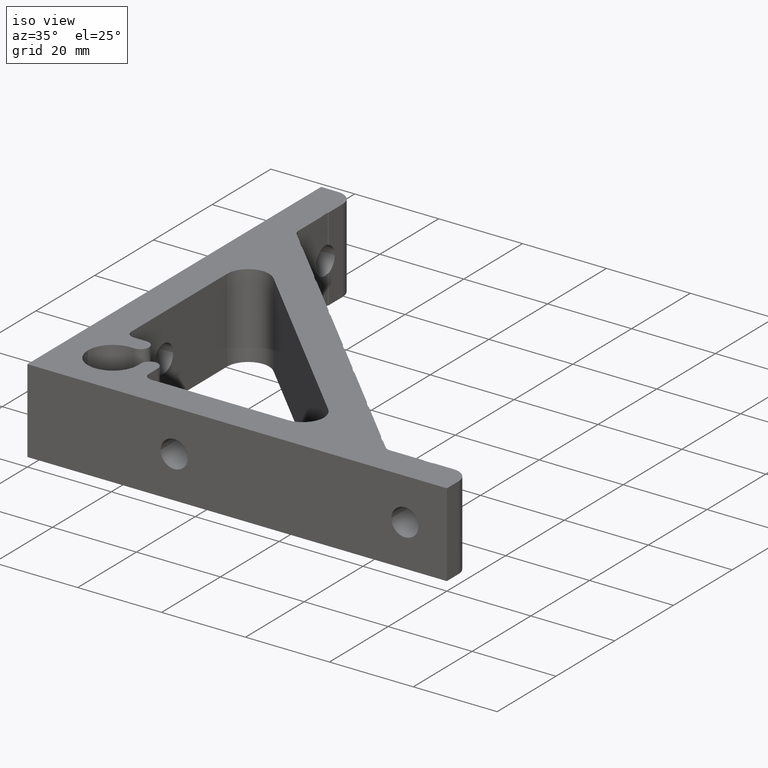
[diagram: clean part render]
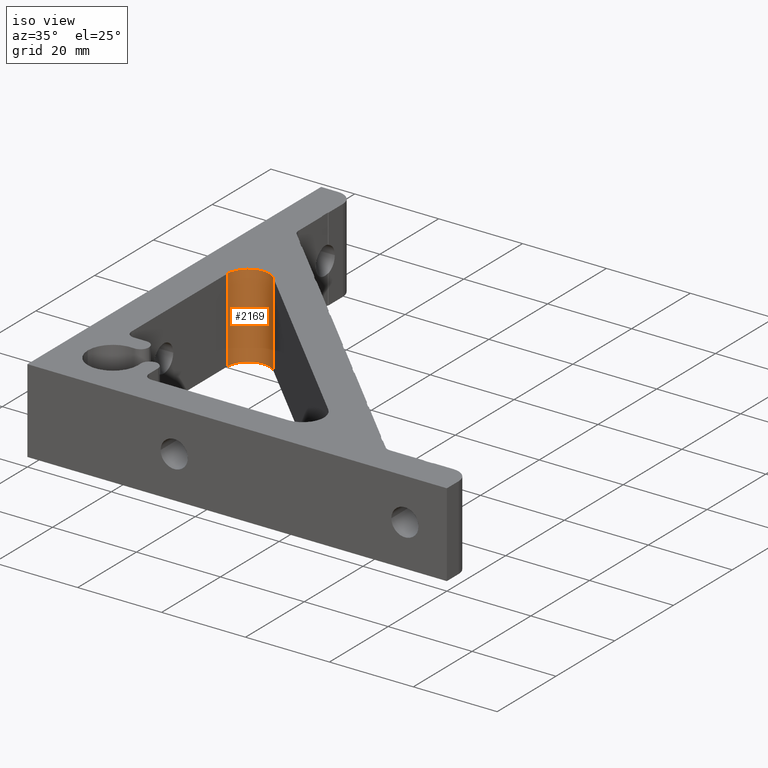
[diagram: same view with one face highlighted and labeled with its STEP entity id]
A machine part, iso view. The second image highlights one B-rep face of the part: STEP entity #2169.
In plain terms, the highlighted cylindrical surface (edge-blend (fillet) strip) has radius 5 mm, axis along (-0, -0, -1).
Its self-contained STEP definition (entity closure, byte-faithful):
#30 = CARTESIAN_POINT ( 'NONE',  ( 16.53553390593282700, 60.15075759508240300, 20.00000000000000000 ) ) ;
#31 = DIRECTION ( 'NONE',  ( -0.0000000000000000000, -0.0000000000000000000, -1.000000000000000000 ) ) ;
#474 = EDGE_LOOP ( 'NONE', ( #2333, #2334, #2335, #2336 ) ) ;
#937 = FACE_OUTER_BOUND ( 'NONE', #474, .T. ) ;
#938 = CYLINDRICAL_SURFACE ( 'NONE', #2872, 5.000000000000000900 ) ;
#958 = CIRCLE ( 'NONE', #2865, 5.000000000000000900 ) ;
#963 = CIRCLE ( 'NONE', #2875, 5.000000000000000900 ) ;
#997 = LINE ( 'NONE', #1838, #998 ) ;
#998 = VECTOR ( 'NONE', #1197, 1000.000000000000000 ) ;
#1197 = DIRECTION ( 'NONE',  ( -0.0000000000000000000, -0.0000000000000000000, -1.000000000000000000 ) ) ;
#1447 = CARTESIAN_POINT ( 'NONE',  ( 13.00000000000000500, 56.61522368914975100, 0.0000000000000000000 ) ) ;
#1476 = DIRECTION ( 'NONE',  ( 1.000000000000000000, 0.0000000000000000000, 0.0000000000000000000 ) ) ;
#1494 = DIRECTION ( 'NONE',  ( 0.0000000000000000000, 0.0000000000000000000, 1.000000000000000000 ) ) ;
#1511 = CARTESIAN_POINT ( 'NONE',  ( 8.000000000000005300, 56.61522368914963000, 0.0000000000000000000 ) ) ;
#1539 = CARTESIAN_POINT ( 'NONE',  ( 13.00000000000000500, 56.61522368914975100, 20.00000000000000000 ) ) ;
#1540 = DIRECTION ( 'NONE',  ( -1.000000000000000000, 0.0000000000000000000, 0.0000000000000000000 ) ) ;
#1553 = DIRECTION ( 'NONE',  ( 0.0000000000000000000, 0.0000000000000000000, 1.000000000000000000 ) ) ;
#1569 = DIRECTION ( 'NONE',  ( -0.0000000000000000000, -0.0000000000000000000, -1.000000000000000000 ) ) ;
#1586 = CARTESIAN_POINT ( 'NONE',  ( 13.00000000000000500, 56.61522368914975100, 20.00000000000000000 ) ) ;
#1601 = CARTESIAN_POINT ( 'NONE',  ( 16.53553390593282700, 60.15075759508240300, 0.0000000000000000000 ) ) ;
#1645 = DIRECTION ( 'NONE',  ( 1.000000000000000000, 0.0000000000000000000, 0.0000000000000000000 ) ) ;
#1838 = CARTESIAN_POINT ( 'NONE',  ( 8.000000000000005300, 56.61522368914963000, 20.00000000000000000 ) ) ;
#1888 = VERTEX_POINT ( 'NONE', #2783 ) ;
#1917 = VERTEX_POINT ( 'NONE', #2039 ) ;
#2039 = CARTESIAN_POINT ( 'NONE',  ( 8.000000000000005300, 56.61522368914963000, 20.00000000000000000 ) ) ;
#2169 = ADVANCED_FACE ( 'NONE', ( #937 ), #938, .F. ) ;
#2205 = LINE ( 'NONE', #30, #2206 ) ;
#2206 = VECTOR ( 'NONE', #31, 1000.000000000000000 ) ;
#2333 = ORIENTED_EDGE ( 'NONE', *, *, #2549, .F. ) ;
#2334 = ORIENTED_EDGE ( 'NONE', *, *, #2592, .F. ) ;
#2335 = ORIENTED_EDGE ( 'NONE', *, *, #2552, .T. ) ;
#2336 = ORIENTED_EDGE ( 'NONE', *, *, #2571, .T. ) ;
#2406 = VERTEX_POINT ( 'NONE', #1601 ) ;
#2432 = VERTEX_POINT ( 'NONE', #1511 ) ;
#2549 = EDGE_CURVE ( 'NONE', #2406, #2432, #958, .T. ) ;
#2552 = EDGE_CURVE ( 'NONE', #1888, #1917, #963, .T. ) ;
#2571 = EDGE_CURVE ( 'NONE', #1917, #2432, #997, .T. ) ;
#2592 = EDGE_CURVE ( 'NONE', #1888, #2406, #2205, .T. ) ;
#2783 = CARTESIAN_POINT ( 'NONE',  ( 16.53553390593282700, 60.15075759508240300, 20.00000000000000000 ) ) ;
#2865 = AXIS2_PLACEMENT_3D ( 'NONE', #1447, #1494, #1476 ) ;
#2872 = AXIS2_PLACEMENT_3D ( 'NONE', #1586, #1569, #1540 ) ;
#2875 = AXIS2_PLACEMENT_3D ( 'NONE', #1539, #1553, #1645 ) ;